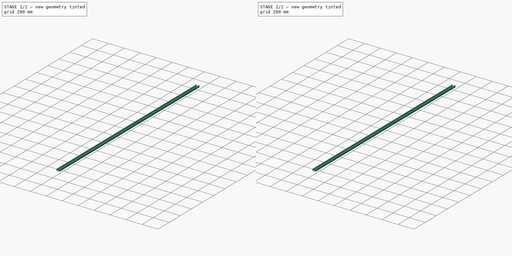
[diagram: build sequence overview — one tinted view per stage of 2, left to right]
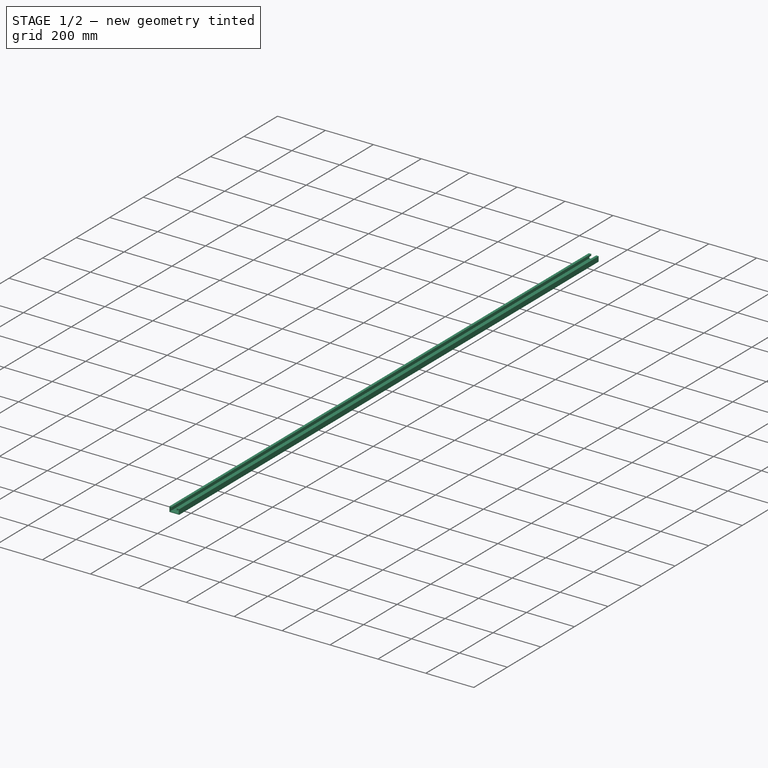
[diagram: stage 1 of 2 — iso view after this stage's code; geometry added in this stage tinted green]
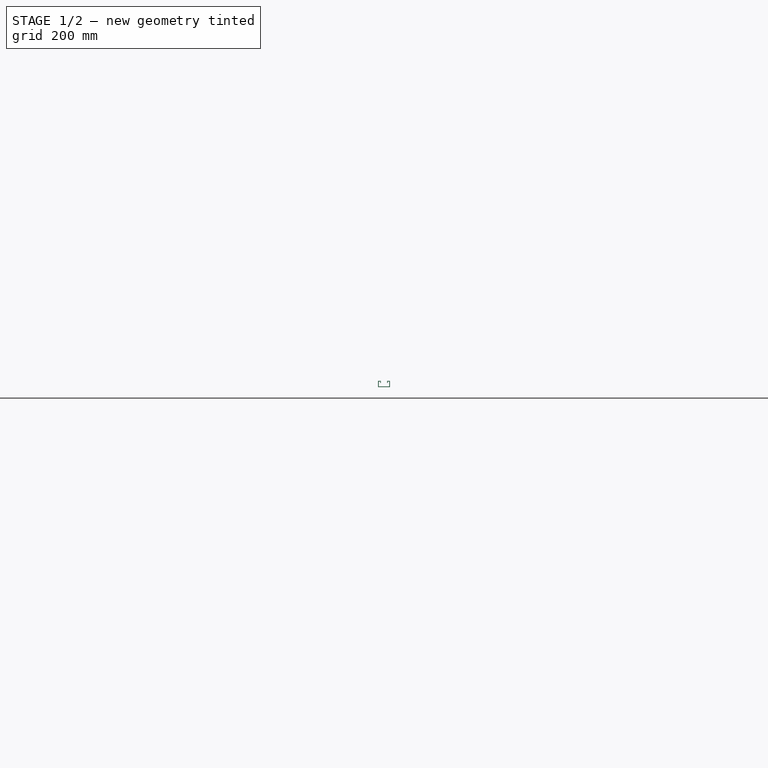
[diagram: stage 1 of 2 — front view after this stage's code; geometry added in this stage tinted green]
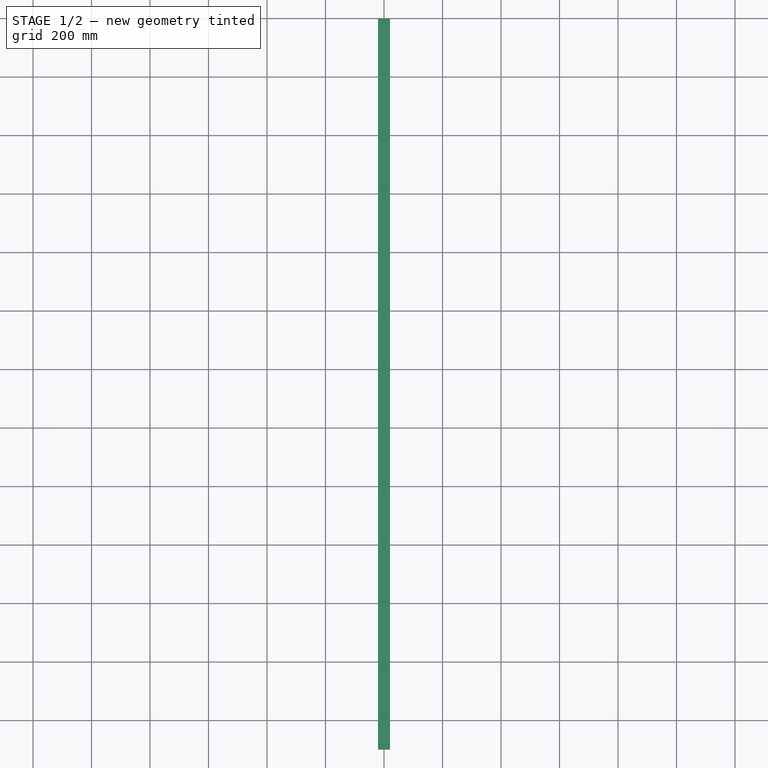
[diagram: stage 1 of 2 — top view after this stage's code; geometry added in this stage tinted green]
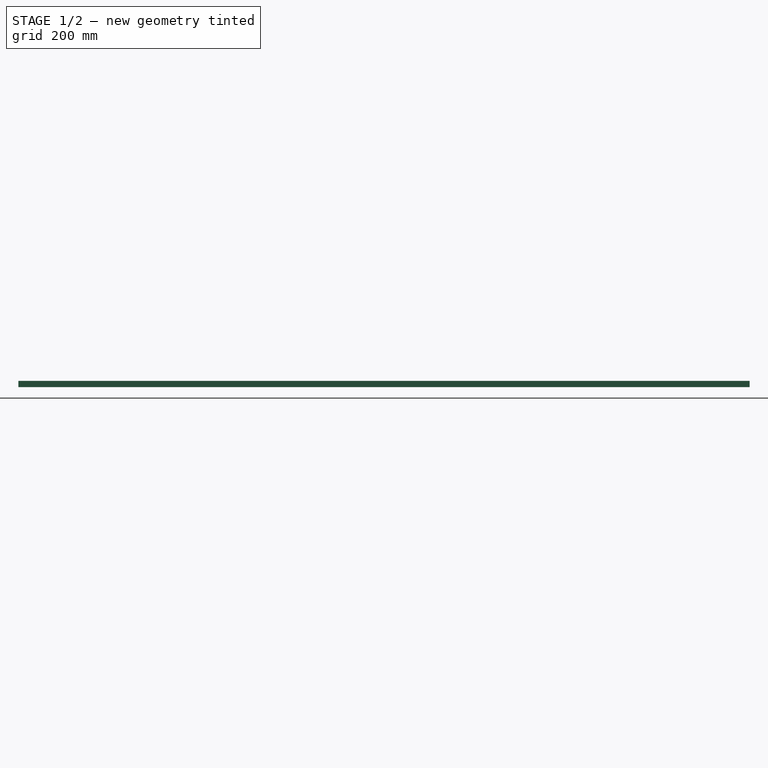
[diagram: stage 1 of 2 — right view after this stage's code; geometry added in this stage tinted green]
FCSTD DOCUMENT  (FreeCAD 0.19R24291 (Git))
Label: Tart_beam
License: All rights reserved
LicenseURL: http://en.wikipedia.org/wiki/All_rights_reserved
objects: Sketcher::SketchObject×2, PartDesign::Pad×1, PartDesign::Pocket×1, PartDesign::Body×1
note: 7 computed .brp shape members not serialized (recipe doc carries the construction recipe); baked Part::Feature solids carry a one-line shape summary decoded from their .brp

FEATURE [Sketcher::SketchObject] Sketch002
  FullyConstrained = true
  MapMode = 5
  Placement = pos=(0,0,0) rot=(1,0,0;1.5708rad)
  Support = -> [XZ_Plane002]
  sketch-geometry (34):
    g0: GeomPoint X=-20.5 Y=0 Z=0
    g1: GeomPoint X=20.5 Y=0 Z=0
    g2: LineSegment StartX=-20.5 StartY=0 StartZ=0 EndX=-20.5 EndY=21 EndZ=0
    g3: LineSegment StartX=20.5 StartY=0 StartZ=0 EndX=20.5 EndY=21 EndZ=0
    g4: LineSegment StartX=-20.5 StartY=21 StartZ=0 EndX=-10.5 EndY=21 EndZ=0
    g5: LineSegment StartX=20.5 StartY=21 StartZ=0 EndX=10.5 EndY=21 EndZ=0
    g6: LineSegment StartX=-10.5 StartY=21 StartZ=0 EndX=-10.5 EndY=14 EndZ=0
    g7: LineSegment StartX=10.5 StartY=21 StartZ=0 EndX=10.5 EndY=14 EndZ=0
    g8: LineSegment StartX=-10.5 StartY=14 StartZ=0 EndX=-13 EndY=14 EndZ=0
    g9: LineSegment StartX=10.5 StartY=14 StartZ=0 EndX=13 EndY=14 EndZ=0
    g10: LineSegment StartX=-13 StartY=14 StartZ=0 EndX=-13 EndY=18.5 EndZ=0
    g11: LineSegment StartX=13 StartY=14 StartZ=0 EndX=13 EndY=18.5 EndZ=0
    g12: LineSegment StartX=-13 StartY=18.5 StartZ=0 EndX=-18 EndY=18.5 EndZ=0
    g13: LineSegment StartX=13 StartY=18.5 StartZ=0 EndX=18 EndY=18.5 EndZ=0
    g14: LineSegment StartX=-18 StartY=18.5 StartZ=0 EndX=-18 EndY=2.5 EndZ=0
    g15: LineSegment StartX=18 StartY=18.5 StartZ=0 EndX=18 EndY=2.5 EndZ=0
    g16: LineSegment StartX=20.5 StartY=0 StartZ=0 EndX=-20.5 EndY=0 EndZ=0
    g17: LineSegment StartX=-18 StartY=2.5 StartZ=0 EndX=18 EndY=2.5 EndZ=0
    g18: LineSegment StartX=-20.5 StartY=0 StartZ=0 EndX=-20.5 EndY=21 EndZ=0
    g19: LineSegment StartX=-10.5 StartY=21 StartZ=0 EndX=-10.5 EndY=14 EndZ=0
    g20: LineSegment StartX=-13 StartY=14 StartZ=0 EndX=-13 EndY=18.5 EndZ=0
    g21: LineSegment StartX=-18 StartY=18.5 StartZ=0 EndX=-18 EndY=2.5 EndZ=0
    g22: LineSegment StartX=18 StartY=2.5 StartZ=0 EndX=18 EndY=18.5 EndZ=0
    g23: LineSegment StartX=13 StartY=18.5 StartZ=0 EndX=13 EndY=14 EndZ=0
    g24: LineSegment StartX=10.5 StartY=14 StartZ=0 EndX=10.5 EndY=21 EndZ=0
    g25: LineSegment StartX=20.5 StartY=21 StartZ=0 EndX=20.5 EndY=0 EndZ=0
    g26: LineSegment StartX=-20.5 StartY=0 StartZ=0 EndX=20.5 EndY=0 EndZ=0
    g27: LineSegment StartX=-10.5 StartY=14 StartZ=0 EndX=-13 EndY=14 EndZ=0
    g28: LineSegment StartX=-10.5 StartY=21 StartZ=0 EndX=-20.5 EndY=21 EndZ=0
    g29: LineSegment StartX=20.5 StartY=21 StartZ=0 EndX=10.5 EndY=21 EndZ=0
    g30: LineSegment StartX=13 StartY=14 StartZ=0 EndX=10.5 EndY=14 EndZ=0
    g31: LineSegment StartX=18 StartY=2.5 StartZ=0 EndX=-18 EndY=2.5 EndZ=0
    g32: LineSegment StartX=-13 StartY=18.5 StartZ=0 EndX=-18 EndY=18.5 EndZ=0
    g33: LineSegment StartX=13 StartY=18.5 StartZ=0 EndX=18 EndY=18.5 EndZ=0
  constraints (82):
    c: PointOnObject(g0,g-1)
    c: PointOnObject(g1,g-1)
    c: Distance(g0,g1) = 41
    c: Distance(g-1,g0) = 20.5
    c: Coincident(g2,g0)
    c: Vertical(g2)
    c: Coincident(g3,g1)
    c: Vertical(g3)
    c: DistanceY(g2,g2) = 21
    c: DistanceY(g3,g3) = 21
    c: Coincident(g4,g2)
    c: Horizontal(g4)
    c: Coincident(g5,g3)
    c: Horizontal(g5)
    c: DistanceX(g4,g4) = 10
    c: DistanceX(g5,g5) = 10
    c: Coincident(g6,g4)
    c: Vertical(g6)
    c: Coincident(g7,g5)
    c: Vertical(g7)
    c: DistanceY(g6,g6) = 7
    c: DistanceY(g7,g7) = 7
    c: Coincident(g8,g6)
    c: Horizontal(g8)
    c: Coincident(g9,g7)
    c: Horizontal(g9)
    c: DistanceX(g8,g8) = 2.5
    c: DistanceX(g9,g9) = 2.5
    c: Coincident(g10,g8)
    c: Vertical(g10)
    c: Coincident(g11,g9)
    c: Vertical(g11)
    c: DistanceY(g10,g10) = 4.5
    c: DistanceY(g11,g11) = 4.5
    c: Coincident(g12,g10)
    c: Horizontal(g12)
    c: Coincident(g13,g11)
    c: Horizontal(g13)
    c: DistanceX(g12,g12) = 5
    c: DistanceX(g13,g13) = 5
    c: Coincident(g14,g12)
    c: Vertical(g14)
    c: Coincident(g15,g13)
    c: Vertical(g15)
    c: Coincident(g16,g1)
    c: Coincident(g16,g0)
    c: DistanceY(g14,g14) = 16
    c: DistanceY(g15,g15) = 16
    c: Coincident(g17,g14)
    c: Coincident(g17,g15)
    c: Coincident(g18,g0)
    c: Coincident(g18,g2)
    c: Coincident(g19,g4)
    c: Coincident(g19,g6)
    c: Coincident(g20,g8)
    c: Coincident(g20,g10)
    c: Coincident(g21,g12)
    c: Coincident(g21,g14)
    c: Coincident(g22,g15)
    c: Coincident(g22,g13)
    c: Coincident(g23,g11)
    c: Coincident(g23,g9)
    c: Coincident(g24,g7)
    c: Coincident(g24,g5)
    c: Coincident(g25,g3)
    c: Coincident(g25,g1)
    c: Coincident(g26,g18)
    c: Coincident(g26,g25)
    c: Coincident(g27,g19)
    c: Coincident(g27,g20)
    c: Coincident(g28,g19)
    c: Coincident(g28,g18)
    c: Coincident(g29,g25)
    c: Coincident(g29,g24)
    c: Coincident(g30,g23)
    c: Coincident(g30,g24)
    c: Coincident(g31,g22)
    c: Coincident(g31,g21)
    c: Coincident(g32,g20)
    c: Coincident(g32,g21)
    c: Coincident(g33,g23)
    c: Coincident(g33,g22)
FEATURE [PartDesign::Pad] Pad
  Direction = (1,1,1)
  Length = 2500
  Length2 = 100
  Placement = pos=(0,0,0) rot=(1,0,0;1.5708rad)
  Profile = -> Sketch002
  Type = 0
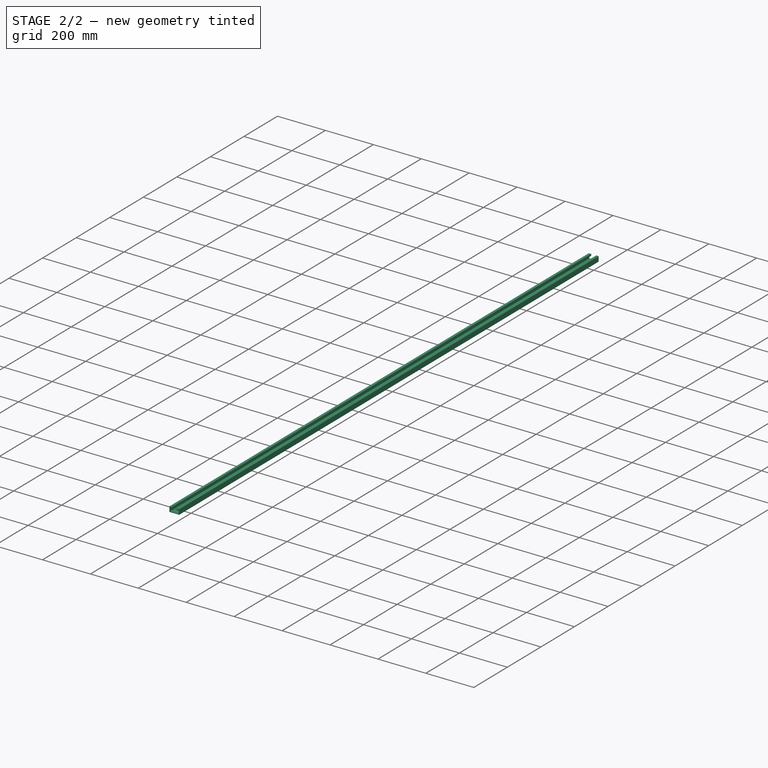
[diagram: stage 2 of 2 — iso view after this stage's code; geometry added in this stage tinted green]
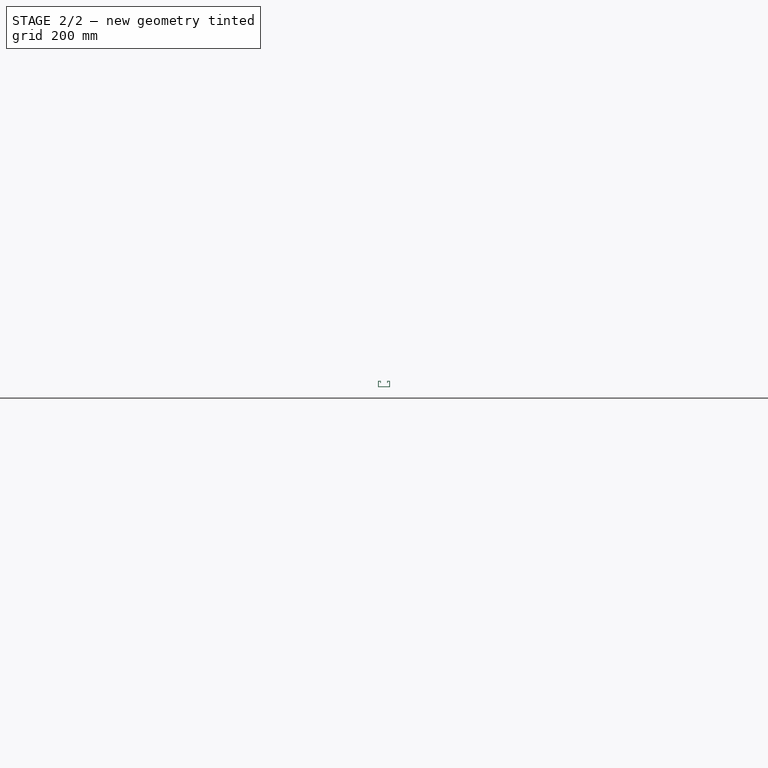
[diagram: stage 2 of 2 — front view after this stage's code; geometry added in this stage tinted green]
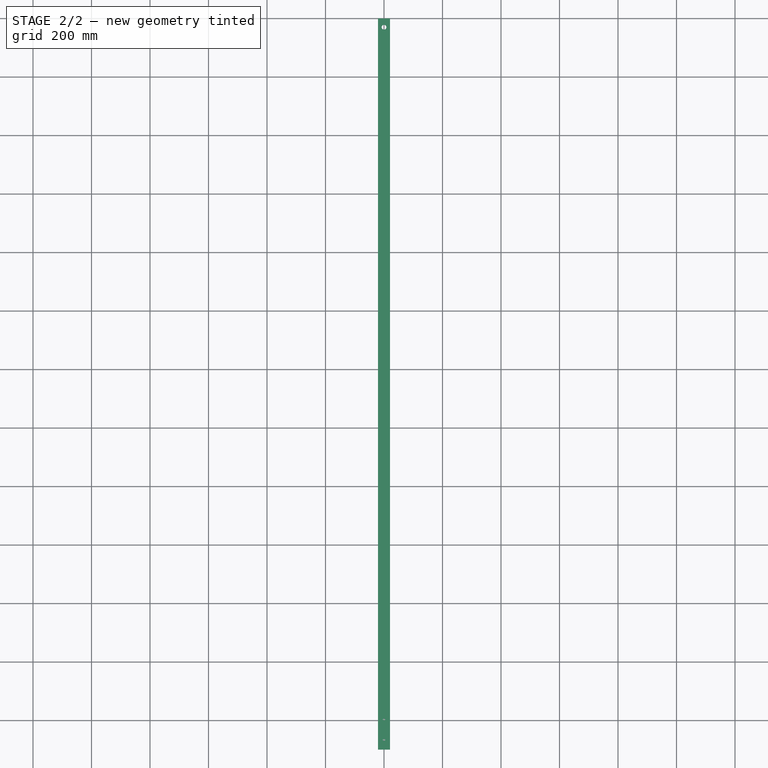
[diagram: stage 2 of 2 — top view after this stage's code; geometry added in this stage tinted green]
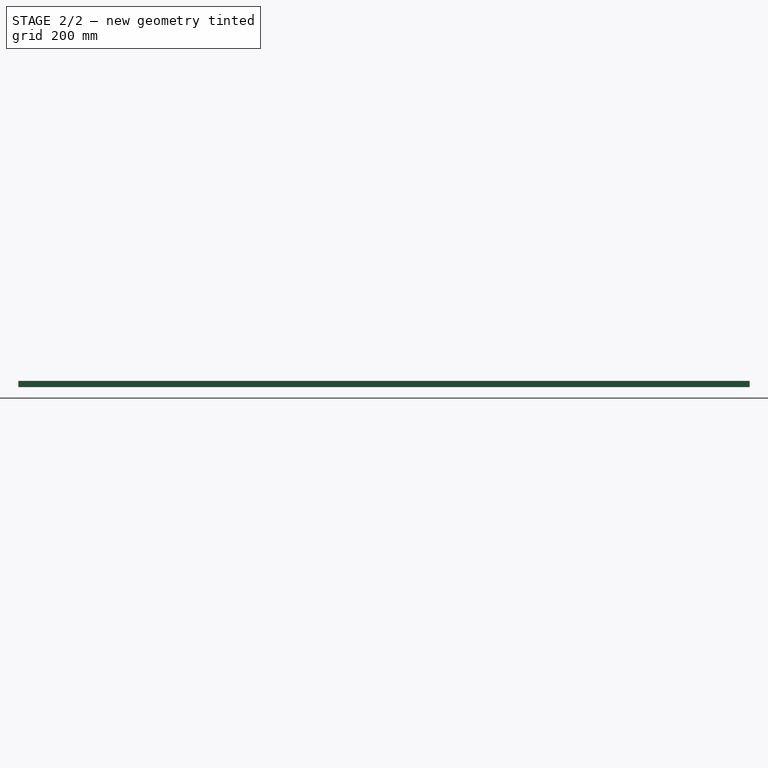
[diagram: stage 2 of 2 — right view after this stage's code; geometry added in this stage tinted green]
FEATURE [Sketcher::SketchObject] Sketch
  FullyConstrained = true
  MapMode = 5
  Placement = pos=(0,6e-16,2.5) rot=(0,0,1;3.14159rad)
  Support = -> [Pad]
  sketch-geometry (5):
    g0: Circle CenterX=0 CenterY=30 CenterZ=0 NormalX=0 NormalY=0 NormalZ=1 AngleXU=0 Radius=8
    g1: Circle CenterX=0 CenterY=2466.95 CenterZ=0 NormalX=0 NormalY=0 NormalZ=1 AngleXU=0 Radius=3.05
    g2: GeomPoint X=0 Y=2500 Z=0
    g3: GeomPoint X=0 Y=2396.95 Z=0
    g4: Circle CenterX=0 CenterY=2396.95 CenterZ=0 NormalX=0 NormalY=0 NormalZ=1 AngleXU=0 Radius=3.05
  constraints (12):
    c: PointOnObject(g0,g-2)
    c: Diameter(g0) = 16
    c: Distance(g0,g-1) = 30
    c: PointOnObject(g2,g-2)
    c: DistanceY(g-1,g2) = 2500
    c: PointOnObject(g1,g-2)
    c: DistanceY(g1,g2) = 33.05
    c: Diameter(g1) = 6.1
    c: PointOnObject(g3,g-2)
    c: DistanceY(g3,g2) = 103.05
    c: Coincident(g4,g3)
    c: Diameter(g4) = 6.1
FEATURE [PartDesign::Pocket] Pocket
  BaseFeature = -> Pad
  Length = 2.5
  Length2 = 100
  Placement = pos=(0,0,0) rot=(1,0,0;1.5708rad)
  Profile = -> Sketch
  Type = 0
FEATURE [PartDesign::Body] Body002  label="Beam"
  Group = -> [Sketch002,Sketch,Pad,Pocket]
  Origin = -> Origin002
  Tip = -> Pocket
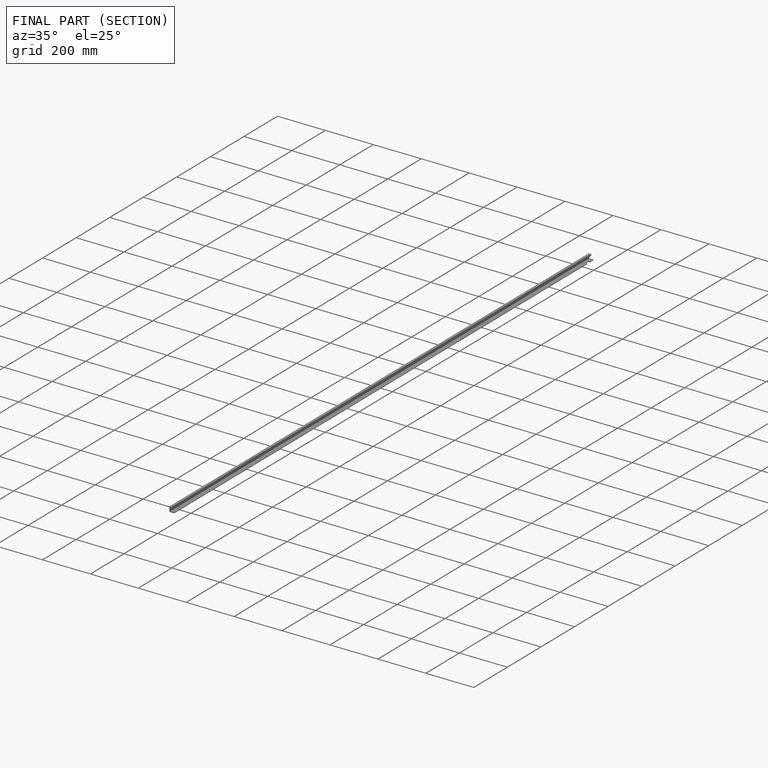
[diagram: finished part — half-section view (interior)]
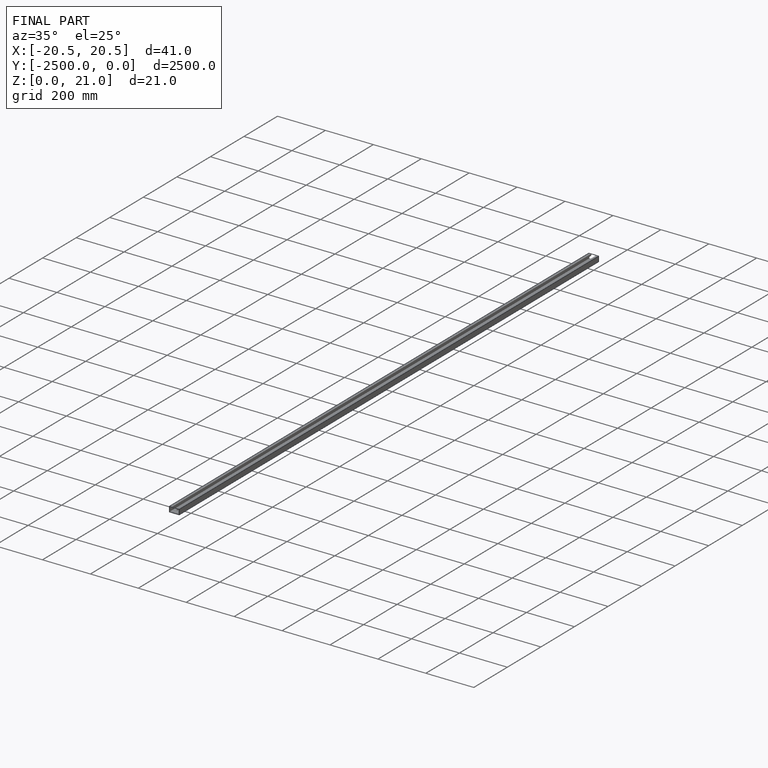
[diagram: finished part — iso view with bounding-box wireframe]
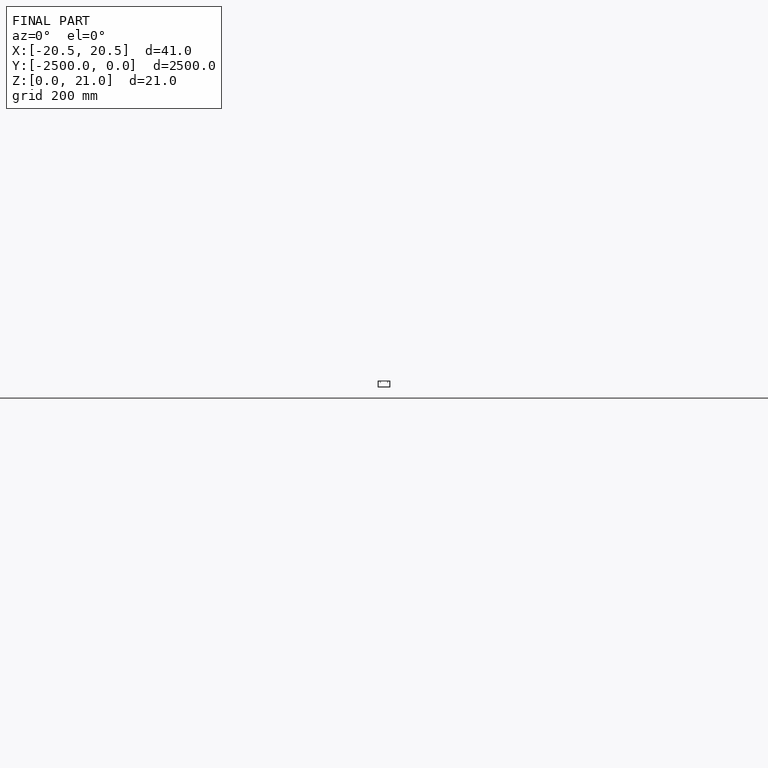
[diagram: finished part — front view with bounding-box wireframe]
